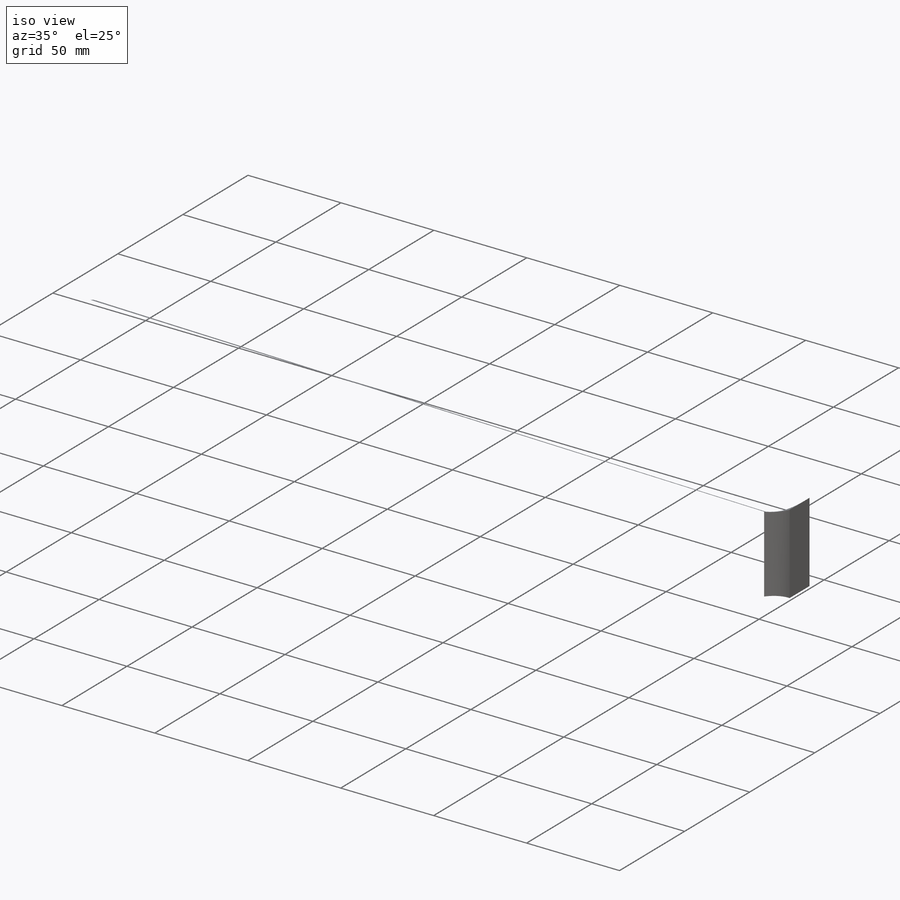
[diagram: iso view]
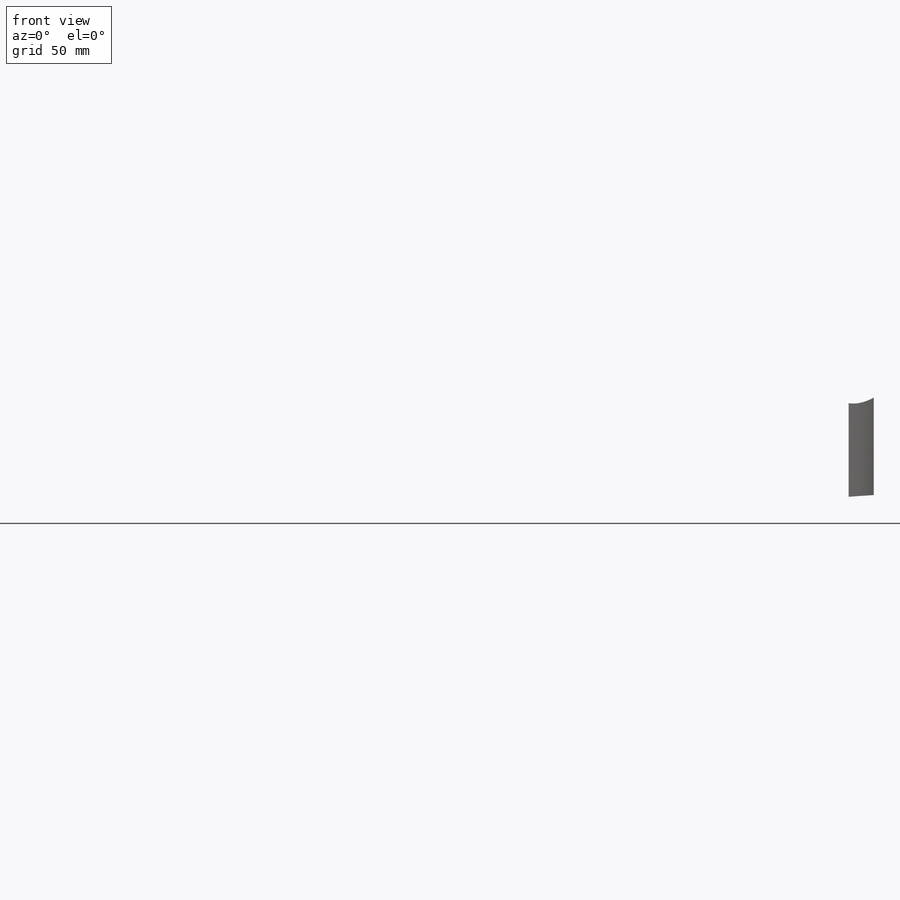
[diagram: front view]
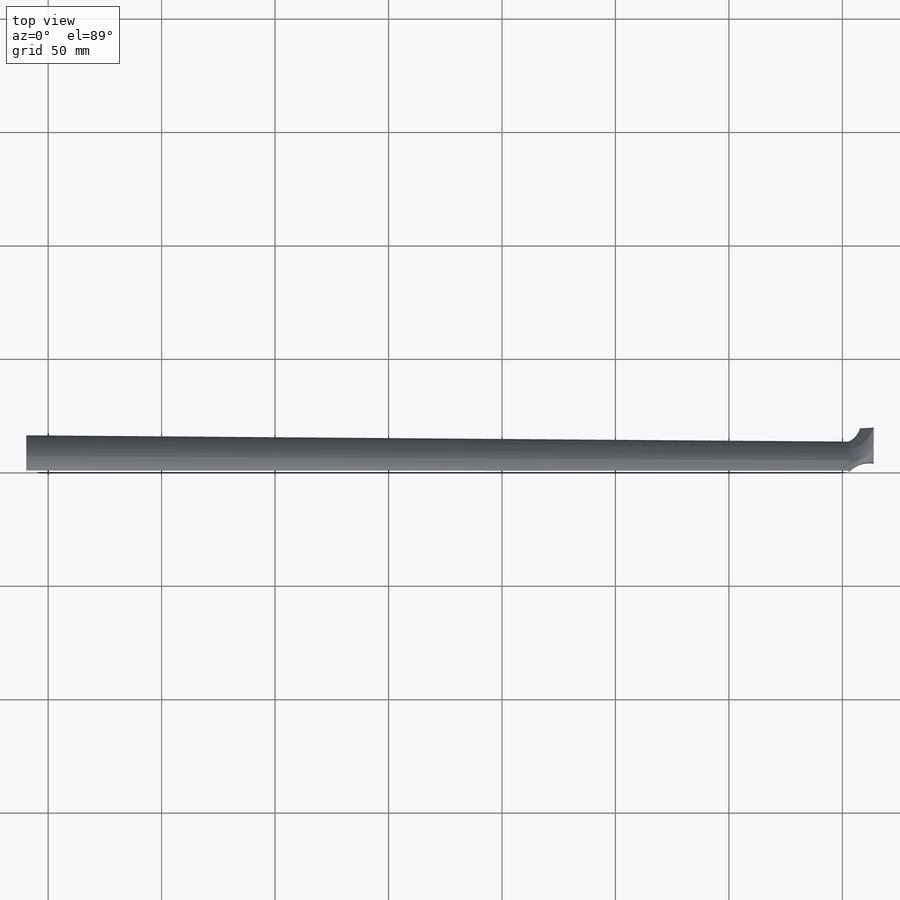
[diagram: top view]
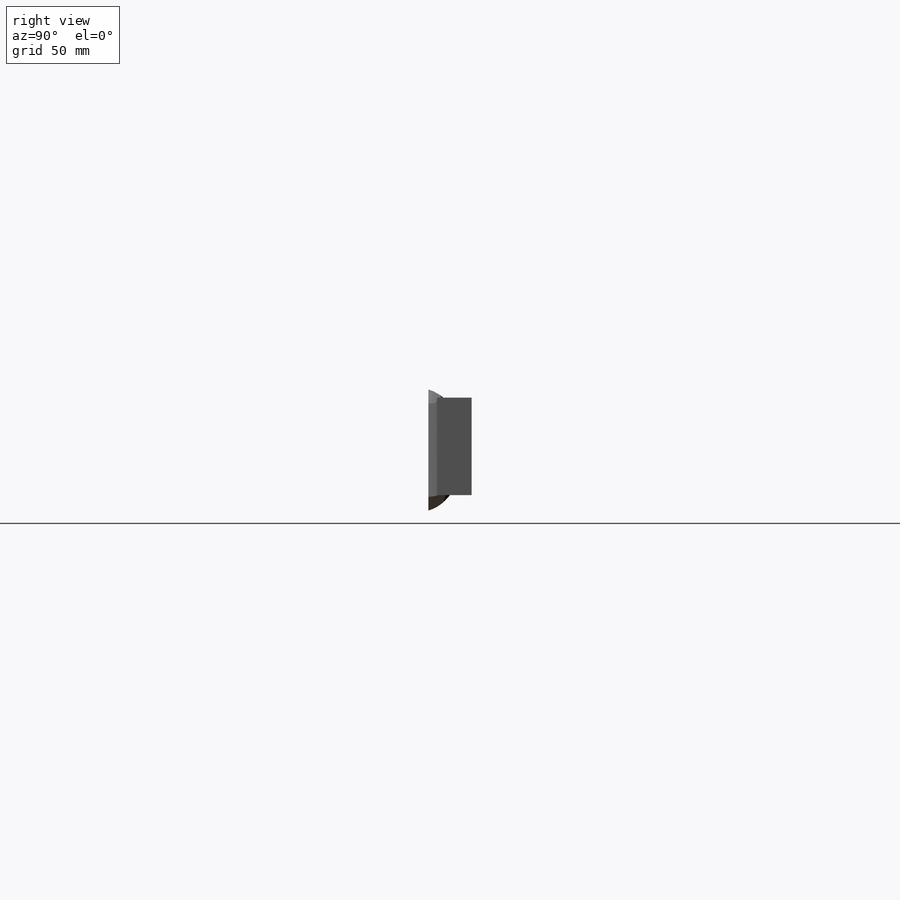
[diagram: right view]
SOLIDWORKS PART (.sldprt)
format: sldprt  version: not decoded by parser v0  size: 1,620,480 bytes
history: native  units: mm
features: sketch x15, plane x10, extrude x6, material x1 (+8 scaffold rows collapsed)
feature tree (40):
  scaffold x8  (default folders/planes/origin — collapsed)
  material  "Material <not specified>"
  plane  "Plano frontal"
  plane  "Plano superior"
  plane  "Plano direito"
  sketch  "Esboço1"  dims[c1.D1=5.08mm c1.D2=5.08mm c2.D1=474.98mm c2.D2=57.15mm c2.D3=57.15mm c3.D1=25.4mm]
  extrude  "Ressalto-extrusão1"  Depth=19.05mm
  extrude  "Ressalto-extrusão2"  [1 undecoded]
  sketch  "Esboço1<3>"  dims[D1=19.05mm]
  plane  "Planoplano da base"  Offset=0mm
  plane  "plano da frente"  Offset=0mm
  sketch  "Esboço2"
  sketch  "Esboço3"
  sketch  "Esboço4"
  extrude  "Imagem de esboço3"  [1 undecoded]
  sketch  "arredondamento do tróculo"
  extrude  "Ressalto-extrusão3"  Depth=19.05mm
  sketch  "Esboço7"
  sketch  "3DSketch2"
  plane  "Peghead front"  Offset=3.81mm
  sketch  "Head front"
  extrude  "Imagem de esboço4"  Depth=25.4mm
  plane  "Peghead back"  Offset=15.24mm
  sketch  "Esboço9"
  extrude  "Ressalto-extrusão4"  Depth=15.24mm
  plane  "tensor cav"  Offset=0mm
  sketch  "Esboço14"  dims[D1=457.2mm]
  plane  "neck volute"
  sketch  "Esboço15"
  plane  "neck volute 2"
  sketch  "Esboço16"
  sketch  "3DSketch4"  dims[c1.D1=~9.720118mm c2.D1=~8.290026mm c3.D1=6.35mm c4.D1=~8.457134mm c5.D1=~7.181468mm c6.D1=~7.758402mm c7.D1=~65.196665deg]
  sketch  "Esboço1<4>"  dims[c1.D1=0.0mm c2.D1=0.0mm]
decode coverage: 9 of 21 modeling features carry decoded parameters
note: ~ marks probable driven/reference dimensions
note: 2 parameter values undecoded
note: suppression state not decoded; provenance and decode notes live in map.json
